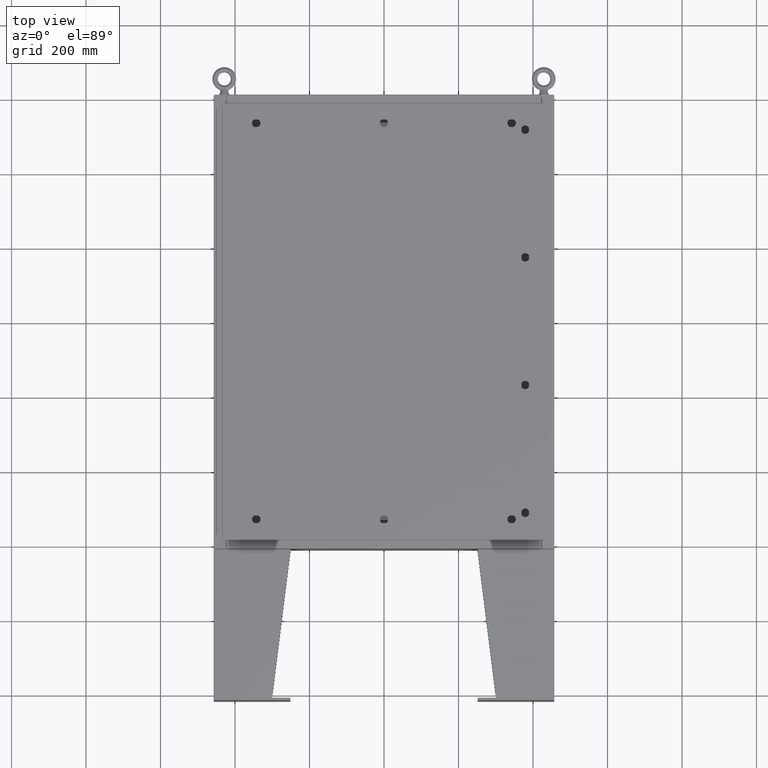
[diagram: clean part render]
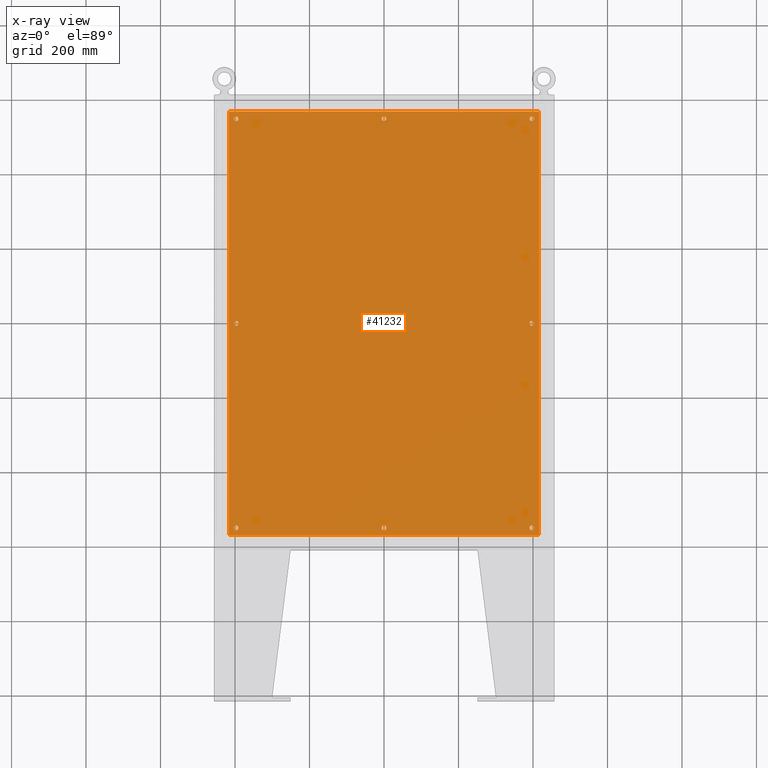
[diagram: x-ray — body ghosted, one internal face saturated and labeled with its STEP entity id]
A machine part, top view, then the same camera in x-ray: the body is ghosted and one INTERNAL B-rep face — a face not visible from any outside direction — is saturated and labeled: STEP entity #41232.
In plain terms, the highlighted planar face has unit normal (0, 0, -1).
Its self-contained STEP definition (entity closure, byte-faithful):
#374 = DIRECTION ( 'NONE',  ( 0.0000000000000000000, -1.000000000000000000, 0.0000000000000000000 ) ) ;
#385 = FACE_BOUND ( 'NONE', #40064, .T. ) ;
#939 = ORIENTED_EDGE ( 'NONE', *, *, #39155, .T. ) ;
#1086 = DIRECTION ( 'NONE',  ( -0.0000000000000000000, -0.0000000000000000000, 1.000000000000000000 ) ) ;
#1112 = AXIS2_PLACEMENT_3D ( 'NONE', #27842, #3135, #31990 ) ;
#1327 = AXIS2_PLACEMENT_3D ( 'NONE', #29620, #4904, #33736 ) ;
#1609 = ORIENTED_EDGE ( 'NONE', *, *, #1637, .T. ) ;
#1637 = EDGE_CURVE ( 'NONE', #30444, #3903, #13720, .T. ) ;
#1728 = DIRECTION ( 'NONE',  ( -1.000000000000000000, 0.0000000000000000000, 0.0000000000000000000 ) ) ;
#2235 = DIRECTION ( 'NONE',  ( -0.0000000000000000000, -0.0000000000000000000, 1.000000000000000000 ) ) ;
#2422 = DIRECTION ( 'NONE',  ( -1.000000000000000000, 0.0000000000000000000, 0.0000000000000000000 ) ) ;
#2497 = CIRCLE ( 'NONE', #43403, 0.2499999999999987000 ) ;
#2775 = CARTESIAN_POINT ( 'NONE',  ( 15.37500000000000000, 3.027752532102204900E-015, -0.1039999999999999800 ) ) ;
#3104 = AXIS2_PLACEMENT_3D ( 'NONE', #11262, #39959, #15328 ) ;
#3135 = DIRECTION ( 'NONE',  ( -0.0000000000000000000, -0.0000000000000000000, 1.000000000000000000 ) ) ;
#3397 = DIRECTION ( 'NONE',  ( -1.000000000000000000, 0.0000000000000000000, -0.0000000000000000000 ) ) ;
#3417 = VERTEX_POINT ( 'NONE', #11909 ) ;
#3903 = VERTEX_POINT ( 'NONE', #17188 ) ;
#4007 = EDGE_CURVE ( 'NONE', #25057, #14614, #19046, .T. ) ;
#4312 = CARTESIAN_POINT ( 'NONE',  ( 15.62500000000000200, 2.997136362123521200E-015, -0.1039999999999999800 ) ) ;
#4586 = EDGE_LOOP ( 'NONE', ( #43062, #43678 ) ) ;
#4784 = DIRECTION ( 'NONE',  ( 0.0000000000000000000, 1.000000000000000000, 0.0000000000000000000 ) ) ;
#4850 = VERTEX_POINT ( 'NONE', #26618 ) ;
#4904 = DIRECTION ( 'NONE',  ( -0.0000000000000000000, -0.0000000000000000000, 1.000000000000000000 ) ) ;
#5103 = DIRECTION ( 'NONE',  ( -0.0000000000000000000, -0.0000000000000000000, 1.000000000000000000 ) ) ;
#5686 = CARTESIAN_POINT ( 'NONE',  ( 0.0000000000000000000, -21.62500000000000400, -0.1039999999999999800 ) ) ;
#5701 = CIRCLE ( 'NONE', #7697, 0.2500000000000008900 ) ;
#5823 = CARTESIAN_POINT ( 'NONE',  ( -15.37500000000000000, -8.298848852119578500E-016, -0.1039999999999999800 ) ) ;
#6352 = LINE ( 'NONE', #41843, #48855 ) ;
#6418 = DIRECTION ( 'NONE',  ( -0.0000000000000000000, -0.0000000000000000000, 1.000000000000000000 ) ) ;
#7062 = EDGE_CURVE ( 'NONE', #9160, #44218, #11081, .T. ) ;
#7157 = CARTESIAN_POINT ( 'NONE',  ( 16.50000000000000700, 22.38300000000000300, -0.1040000000000009400 ) ) ;
#7350 = CARTESIAN_POINT ( 'NONE',  ( -16.49999999999999600, -22.38300000000000300, -0.1040000000000009400 ) ) ;
#7575 = CARTESIAN_POINT ( 'NONE',  ( -0.2500000000000011700, -21.62500000000000400, -0.1039999999999999800 ) ) ;
#7697 = AXIS2_PLACEMENT_3D ( 'NONE', #47463, #14800, #42037 ) ;
#8678 = CIRCLE ( 'NONE', #16855, 0.2499999999999998600 ) ;
#8844 = CARTESIAN_POINT ( 'NONE',  ( 15.62500000000000400, 21.62500000000000400, -0.1039999999999999800 ) ) ;
#8847 = CARTESIAN_POINT ( 'NONE',  ( 0.0000000000000000000, 21.62500000000000400, -0.1039999999999999800 ) ) ;
#9160 = VERTEX_POINT ( 'NONE', #7575 ) ;
#9775 = CARTESIAN_POINT ( 'NONE',  ( 0.0000000000000000000, -21.62500000000000400, -0.1039999999999999800 ) ) ;
#9858 = VERTEX_POINT ( 'NONE', #36445 ) ;
#9880 = DIRECTION ( 'NONE',  ( -1.000000000000000000, 0.0000000000000000000, 0.0000000000000000000 ) ) ;
#9897 = VERTEX_POINT ( 'NONE', #2775 ) ;
#10116 = FACE_OUTER_BOUND ( 'NONE', #36010, .T. ) ;
#10124 = CARTESIAN_POINT ( 'NONE',  ( 16.38300000000000600, -22.38300000000000300, -0.1040000000000009100 ) ) ;
#10308 = AXIS2_PLACEMENT_3D ( 'NONE', #19615, #48375, #23728 ) ;
#10495 = VERTEX_POINT ( 'NONE', #33845 ) ;
#10980 = AXIS2_PLACEMENT_3D ( 'NONE', #9775, #6418, #28875 ) ;
#11081 = CIRCLE ( 'NONE', #12651, 0.2500000000000011700 ) ;
#11151 = CIRCLE ( 'NONE', #45668, 0.2499999999999987000 ) ;
#11262 = CARTESIAN_POINT ( 'NONE',  ( 0.0000000000000000000, 21.62500000000000400, -0.1039999999999999800 ) ) ;
#11336 = DIRECTION ( 'NONE',  ( -1.000000000000000000, -0.0000000000000000000, -0.0000000000000000000 ) ) ;
#11764 = EDGE_CURVE ( 'NONE', #50051, #38962, #8678, .T. ) ;
#11909 = CARTESIAN_POINT ( 'NONE',  ( 15.87500000000000200, 2.997136362123521200E-015, -0.1039999999999999800 ) ) ;
#12575 = LINE ( 'NONE', #25053, #34427 ) ;
#12651 = AXIS2_PLACEMENT_3D ( 'NONE', #5686, #34491, #9880 ) ;
#12708 = FACE_BOUND ( 'NONE', #13457, .T. ) ;
#12962 = VERTEX_POINT ( 'NONE', #38289 ) ;
#12971 = DIRECTION ( 'NONE',  ( -1.000000000000000000, 0.0000000000000000000, 0.0000000000000000000 ) ) ;
#13002 = CARTESIAN_POINT ( 'NONE',  ( 15.62500000000000400, -21.62500000000000400, -0.1039999999999999800 ) ) ;
#13457 = EDGE_LOOP ( 'NONE', ( #49351, #25580 ) ) ;
#13720 = CIRCLE ( 'NONE', #14587, 0.2499999999999987000 ) ;
#14045 = EDGE_CURVE ( 'NONE', #9897, #3417, #14303, .T. ) ;
#14303 = CIRCLE ( 'NONE', #44496, 0.2500000000000008900 ) ;
#14587 = AXIS2_PLACEMENT_3D ( 'NONE', #46318, #5103, #1728 ) ;
#14614 = VERTEX_POINT ( 'NONE', #27201 ) ;
#14800 = DIRECTION ( 'NONE',  ( -0.0000000000000000000, -0.0000000000000000000, 1.000000000000000000 ) ) ;
#14976 = ORIENTED_EDGE ( 'NONE', *, *, #33593, .T. ) ;
#15303 = EDGE_CURVE ( 'NONE', #44218, #9160, #37295, .T. ) ;
#15323 = LINE ( 'NONE', #7350, #24978 ) ;
#15328 = DIRECTION ( 'NONE',  ( -1.000000000000000000, 0.0000000000000000000, 0.0000000000000000000 ) ) ;
#16855 = AXIS2_PLACEMENT_3D ( 'NONE', #8847, #46168, #50431 ) ;
#17115 = FACE_BOUND ( 'NONE', #52169, .T. ) ;
#17143 = DIRECTION ( 'NONE',  ( -1.000000000000000000, 0.0000000000000000000, 0.0000000000000000000 ) ) ;
#17188 = CARTESIAN_POINT ( 'NONE',  ( 15.87500000000000200, 21.62500000000000400, -0.1039999999999999800 ) ) ;
#17723 = CARTESIAN_POINT ( 'NONE',  ( -15.62500000000000200, -8.298848852119578500E-016, -0.1039999999999999800 ) ) ;
#18187 = AXIS2_PLACEMENT_3D ( 'NONE', #28097, #40279, #3397 ) ;
#19046 = CIRCLE ( 'NONE', #50644, 0.2500000000000008900 ) ;
#19615 = CARTESIAN_POINT ( 'NONE',  ( -15.62500000000000200, -8.298848852119578500E-016, -0.1039999999999999800 ) ) ;
#20382 = CIRCLE ( 'NONE', #39532, 0.2499999999999987000 ) ;
#21056 = FACE_BOUND ( 'NONE', #43284, .T. ) ;
#21875 = DIRECTION ( 'NONE',  ( -1.000000000000000000, 0.0000000000000000000, 0.0000000000000000000 ) ) ;
#22355 = FACE_BOUND ( 'NONE', #32821, .T. ) ;
#23621 = EDGE_CURVE ( 'NONE', #40565, #44737, #5701, .T. ) ;
#23726 = AXIS2_PLACEMENT_3D ( 'NONE', #25784, #1086, #29979 ) ;
#23728 = DIRECTION ( 'NONE',  ( -1.000000000000000000, 0.0000000000000000000, 0.0000000000000000000 ) ) ;
#23934 = PLANE ( 'NONE',  #18187 ) ;
#24167 = EDGE_CURVE ( 'NONE', #30304, #52097, #15323, .T. ) ;
#24584 = VECTOR ( 'NONE', #11336, 39.37007874015748100 ) ;
#24978 = VECTOR ( 'NONE', #49909, 39.37007874015748100 ) ;
#25053 = CARTESIAN_POINT ( 'NONE',  ( -16.38299999999999600, 22.38300000000000300, -0.1040000000000009100 ) ) ;
#25057 = VERTEX_POINT ( 'NONE', #5823 ) ;
#25067 = ORIENTED_EDGE ( 'NONE', *, *, #46184, .F. ) ;
#25419 = ORIENTED_EDGE ( 'NONE', *, *, #43648, .T. ) ;
#25509 = AXIS2_PLACEMENT_3D ( 'NONE', #26943, #2235, #31100 ) ;
#25580 = ORIENTED_EDGE ( 'NONE', *, *, #14045, .T. ) ;
#25729 = ORIENTED_EDGE ( 'NONE', *, *, #11764, .T. ) ;
#25784 = CARTESIAN_POINT ( 'NONE',  ( 15.62500000000000200, 2.997136362123521200E-015, -0.1039999999999999800 ) ) ;
#25804 = ORIENTED_EDGE ( 'NONE', *, *, #44056, .T. ) ;
#25855 = LINE ( 'NONE', #7157, #24584 ) ;
#26414 = DIRECTION ( 'NONE',  ( -0.0000000000000000000, -0.0000000000000000000, 1.000000000000000000 ) ) ;
#26618 = CARTESIAN_POINT ( 'NONE',  ( -15.87500000000000200, -21.62500000000000400, -0.1039999999999999800 ) ) ;
#26943 = CARTESIAN_POINT ( 'NONE',  ( -15.62500000000000500, 21.62500000000000400, -0.1039999999999999800 ) ) ;
#27139 = DIRECTION ( 'NONE',  ( -0.0000000000000000000, -0.0000000000000000000, 1.000000000000000000 ) ) ;
#27201 = CARTESIAN_POINT ( 'NONE',  ( -15.87500000000000200, -7.992687152332741600E-016, -0.1039999999999999800 ) ) ;
#27842 = CARTESIAN_POINT ( 'NONE',  ( 15.62500000000000400, -21.62500000000000400, -0.1039999999999999800 ) ) ;
#27985 = CARTESIAN_POINT ( 'NONE',  ( -15.87500000000000700, 21.62500000000000400, -0.1039999999999999800 ) ) ;
#28097 = CARTESIAN_POINT ( 'NONE',  ( 0.0000000000000000000, 0.0000000000000000000, -0.1039999999999999800 ) ) ;
#28875 = DIRECTION ( 'NONE',  ( -1.000000000000000000, 0.0000000000000000000, 0.0000000000000000000 ) ) ;
#28915 = ORIENTED_EDGE ( 'NONE', *, *, #51106, .F. ) ;
#29620 = CARTESIAN_POINT ( 'NONE',  ( -15.62500000000000400, -21.62500000000000400, -0.1039999999999999800 ) ) ;
#29979 = DIRECTION ( 'NONE',  ( -1.000000000000000000, 0.0000000000000000000, 0.0000000000000000000 ) ) ;
#30250 = ORIENTED_EDGE ( 'NONE', *, *, #7062, .T. ) ;
#30304 = VERTEX_POINT ( 'NONE', #30847 ) ;
#30444 = VERTEX_POINT ( 'NONE', #40143 ) ;
#30614 = ORIENTED_EDGE ( 'NONE', *, *, #40808, .T. ) ;
#30847 = CARTESIAN_POINT ( 'NONE',  ( -16.38299999999999600, -22.38300000000000300, -0.1040000000000009400 ) ) ;
#31100 = DIRECTION ( 'NONE',  ( -1.000000000000000000, 0.0000000000000000000, 0.0000000000000000000 ) ) ;
#31237 = CARTESIAN_POINT ( 'NONE',  ( -0.2499999999999998600, 21.62500000000000400, -0.1039999999999999800 ) ) ;
#31367 = VERTEX_POINT ( 'NONE', #46700 ) ;
#31990 = DIRECTION ( 'NONE',  ( -1.000000000000000000, 0.0000000000000000000, 0.0000000000000000000 ) ) ;
#32021 = FACE_BOUND ( 'NONE', #42474, .T. ) ;
#32041 = EDGE_CURVE ( 'NONE', #3417, #9897, #47760, .T. ) ;
#32438 = CIRCLE ( 'NONE', #25509, 0.2500000000000008900 ) ;
#32821 = EDGE_LOOP ( 'NONE', ( #48223, #25729 ) ) ;
#33593 = EDGE_CURVE ( 'NONE', #4850, #12962, #2497, .T. ) ;
#33736 = DIRECTION ( 'NONE',  ( -1.000000000000000000, 0.0000000000000000000, 0.0000000000000000000 ) ) ;
#33845 = CARTESIAN_POINT ( 'NONE',  ( 15.87500000000000200, -21.62500000000000400, -0.1039999999999999800 ) ) ;
#34200 = DIRECTION ( 'NONE',  ( -1.000000000000000000, 0.0000000000000000000, 0.0000000000000000000 ) ) ;
#34427 = VECTOR ( 'NONE', #374, 39.37007874015748100 ) ;
#34491 = DIRECTION ( 'NONE',  ( -0.0000000000000000000, -0.0000000000000000000, 1.000000000000000000 ) ) ;
#34786 = ORIENTED_EDGE ( 'NONE', *, *, #46560, .T. ) ;
#35110 = EDGE_CURVE ( 'NONE', #38962, #50051, #48108, .T. ) ;
#35491 = ORIENTED_EDGE ( 'NONE', *, *, #23621, .T. ) ;
#36010 = EDGE_LOOP ( 'NONE', ( #43591, #38866, #28915, #25067 ) ) ;
#36025 = CARTESIAN_POINT ( 'NONE',  ( 0.2499999999999998600, 21.62500000000000400, -0.1039999999999999800 ) ) ;
#36445 = CARTESIAN_POINT ( 'NONE',  ( 15.37500000000000500, -21.62500000000000400, -0.1039999999999999800 ) ) ;
#36758 = CIRCLE ( 'NONE', #1327, 0.2499999999999987000 ) ;
#37295 = CIRCLE ( 'NONE', #10980, 0.2500000000000011700 ) ;
#37594 = DIRECTION ( 'NONE',  ( -0.0000000000000000000, -0.0000000000000000000, 1.000000000000000000 ) ) ;
#38289 = CARTESIAN_POINT ( 'NONE',  ( -15.37500000000000500, -21.62500000000000400, -0.1039999999999999800 ) ) ;
#38718 = CARTESIAN_POINT ( 'NONE',  ( 0.2500000000000011700, -21.62500000000000400, -0.1039999999999999800 ) ) ;
#38866 = ORIENTED_EDGE ( 'NONE', *, *, #49347, .F. ) ;
#38962 = VERTEX_POINT ( 'NONE', #36025 ) ;
#39155 = EDGE_CURVE ( 'NONE', #3903, #30444, #11151, .T. ) ;
#39504 = CARTESIAN_POINT ( 'NONE',  ( -15.37500000000000500, 21.62500000000000400, -0.1039999999999999800 ) ) ;
#39532 = AXIS2_PLACEMENT_3D ( 'NONE', #13002, #41727, #17143 ) ;
#39959 = DIRECTION ( 'NONE',  ( -0.0000000000000000000, -0.0000000000000000000, 1.000000000000000000 ) ) ;
#40064 = EDGE_LOOP ( 'NONE', ( #25804, #14976 ) ) ;
#40143 = CARTESIAN_POINT ( 'NONE',  ( 15.37500000000000500, 21.62500000000000400, -0.1039999999999999800 ) ) ;
#40279 = DIRECTION ( 'NONE',  ( 0.0000000000000000000, 0.0000000000000000000, -1.000000000000000000 ) ) ;
#40565 = VERTEX_POINT ( 'NONE', #27985 ) ;
#40808 = EDGE_CURVE ( 'NONE', #10495, #9858, #20382, .T. ) ;
#41232 = ADVANCED_FACE ( 'NONE', ( #17115, #22355, #12708, #44207, #385, #42908, #32021, #21056, #10116 ), #23934, .T. ) ;
#41274 = VERTEX_POINT ( 'NONE', #48768 ) ;
#41727 = DIRECTION ( 'NONE',  ( -0.0000000000000000000, -0.0000000000000000000, 1.000000000000000000 ) ) ;
#41843 = CARTESIAN_POINT ( 'NONE',  ( 16.38300000000000600, -22.38300000000000300, -0.1040000000000009100 ) ) ;
#42037 = DIRECTION ( 'NONE',  ( -1.000000000000000000, 0.0000000000000000000, 0.0000000000000000000 ) ) ;
#42474 = EDGE_LOOP ( 'NONE', ( #939, #1609 ) ) ;
#42643 = EDGE_CURVE ( 'NONE', #14614, #25057, #49221, .T. ) ;
#42908 = FACE_BOUND ( 'NONE', #44458, .T. ) ;
#42992 = CIRCLE ( 'NONE', #1112, 0.2499999999999987000 ) ;
#43062 = ORIENTED_EDGE ( 'NONE', *, *, #4007, .T. ) ;
#43284 = EDGE_LOOP ( 'NONE', ( #25419, #35491 ) ) ;
#43403 = AXIS2_PLACEMENT_3D ( 'NONE', #51791, #27139, #2422 ) ;
#43591 = ORIENTED_EDGE ( 'NONE', *, *, #24167, .F. ) ;
#43648 = EDGE_CURVE ( 'NONE', #44737, #40565, #32438, .T. ) ;
#43678 = ORIENTED_EDGE ( 'NONE', *, *, #42643, .T. ) ;
#44056 = EDGE_CURVE ( 'NONE', #12962, #4850, #36758, .T. ) ;
#44207 = FACE_BOUND ( 'NONE', #4586, .T. ) ;
#44218 = VERTEX_POINT ( 'NONE', #38718 ) ;
#44458 = EDGE_LOOP ( 'NONE', ( #30614, #34786 ) ) ;
#44496 = AXIS2_PLACEMENT_3D ( 'NONE', #4312, #26414, #34200 ) ;
#44737 = VERTEX_POINT ( 'NONE', #39504 ) ;
#45668 = AXIS2_PLACEMENT_3D ( 'NONE', #8844, #37594, #12971 ) ;
#46168 = DIRECTION ( 'NONE',  ( -0.0000000000000000000, -0.0000000000000000000, 1.000000000000000000 ) ) ;
#46184 = EDGE_CURVE ( 'NONE', #52097, #41274, #6352, .T. ) ;
#46318 = CARTESIAN_POINT ( 'NONE',  ( 15.62500000000000400, 21.62500000000000400, -0.1039999999999999800 ) ) ;
#46484 = DIRECTION ( 'NONE',  ( -0.0000000000000000000, -0.0000000000000000000, 1.000000000000000000 ) ) ;
#46560 = EDGE_CURVE ( 'NONE', #9858, #10495, #42992, .T. ) ;
#46700 = CARTESIAN_POINT ( 'NONE',  ( -16.38299999999999600, 22.38300000000000300, -0.1040000000000009100 ) ) ;
#47134 = ORIENTED_EDGE ( 'NONE', *, *, #15303, .T. ) ;
#47463 = CARTESIAN_POINT ( 'NONE',  ( -15.62500000000000500, 21.62500000000000400, -0.1039999999999999800 ) ) ;
#47760 = CIRCLE ( 'NONE', #23726, 0.2500000000000008900 ) ;
#48108 = CIRCLE ( 'NONE', #3104, 0.2499999999999998600 ) ;
#48223 = ORIENTED_EDGE ( 'NONE', *, *, #35110, .T. ) ;
#48375 = DIRECTION ( 'NONE',  ( -0.0000000000000000000, -0.0000000000000000000, 1.000000000000000000 ) ) ;
#48768 = CARTESIAN_POINT ( 'NONE',  ( 16.38300000000000600, 22.38300000000000300, -0.1040000000000009100 ) ) ;
#48855 = VECTOR ( 'NONE', #4784, 39.37007874015748100 ) ;
#49221 = CIRCLE ( 'NONE', #10308, 0.2500000000000008900 ) ;
#49347 = EDGE_CURVE ( 'NONE', #31367, #30304, #12575, .T. ) ;
#49351 = ORIENTED_EDGE ( 'NONE', *, *, #32041, .T. ) ;
#49909 = DIRECTION ( 'NONE',  ( 1.000000000000000000, -0.0000000000000000000, -0.0000000000000000000 ) ) ;
#50051 = VERTEX_POINT ( 'NONE', #31237 ) ;
#50431 = DIRECTION ( 'NONE',  ( -1.000000000000000000, 0.0000000000000000000, 0.0000000000000000000 ) ) ;
#50644 = AXIS2_PLACEMENT_3D ( 'NONE', #17723, #46484, #21875 ) ;
#51106 = EDGE_CURVE ( 'NONE', #41274, #31367, #25855, .T. ) ;
#51791 = CARTESIAN_POINT ( 'NONE',  ( -15.62500000000000400, -21.62500000000000400, -0.1039999999999999800 ) ) ;
#52097 = VERTEX_POINT ( 'NONE', #10124 ) ;
#52169 = EDGE_LOOP ( 'NONE', ( #47134, #30250 ) ) ;